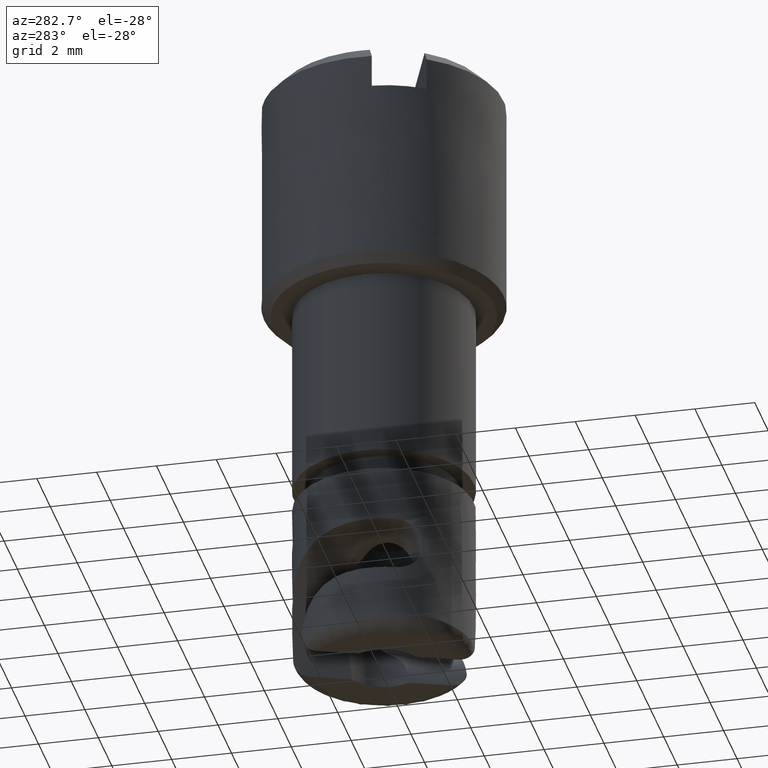
[diagram: clean part render]
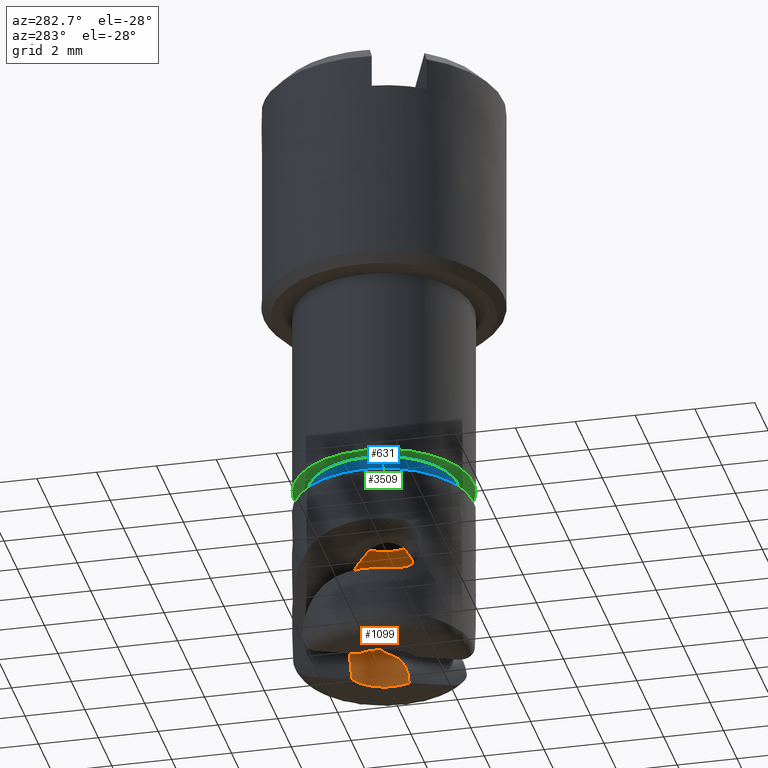
[diagram: same view with three faces highlighted in distinct colors, each labeled with its STEP entity id]
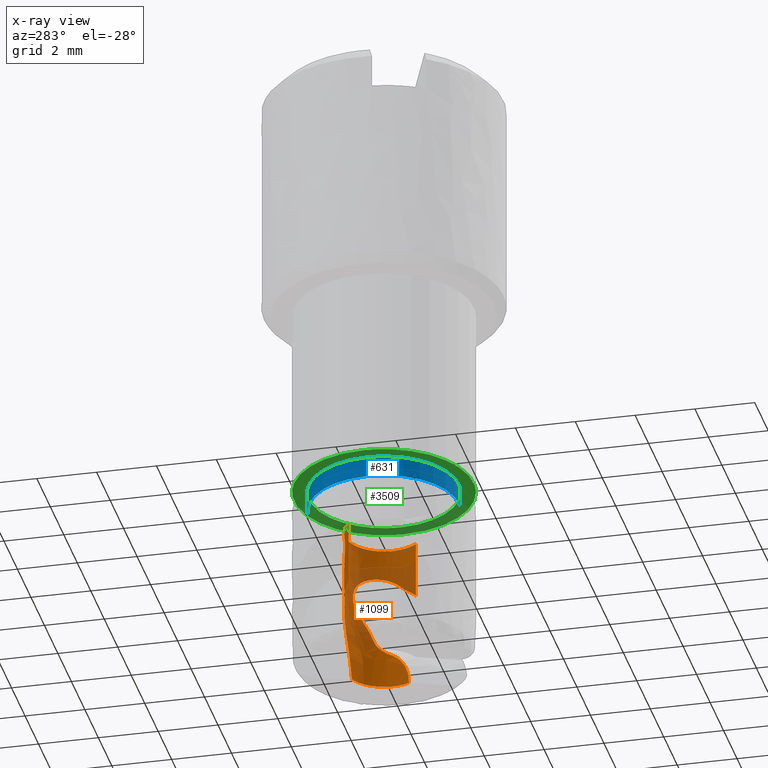
[diagram: x-ray of the same camera — body ghosted, the three highlighted faces saturated]
A machine part, auxiliary view with three faces highlighted in distinct colors.
The next image is the same camera in x-ray (body ghosted, the three faces saturated) — at least one of them is partly hidden behind the body in this view.
Their STEP definitions:

[orange] entity #1099 — the highlighted face is a freeform B-spline surface patch.
#654=CARTESIAN_POINT('',(0.992059936651638,-0.840183662686237,0.305371957803331));
#655=VERTEX_POINT('',#654);
#816=CARTESIAN_POINT('',(-0.830183882252613,1.000432129150354,0.106205310528743));
#817=VERTEX_POINT('',#816);
#831=CARTESIAN_POINT('',(-0.830165377469329,1.000412637890112,2.202430999999950));
#832=VERTEX_POINT('',#831);
#833=CARTESIAN_POINT('',(-0.830165377469329,1.000412637890112,2.202430999999950));
#834=CARTESIAN_POINT('',(-0.830183882252613,1.000432129150354,0.106205310528743));
#835=QUASI_UNIFORM_CURVE('',1,(#833,#834),.UNSPECIFIED.,.F.,.U.);
#836=EDGE_CURVE('',#832,#817,#835,.T.);
#853=CARTESIAN_POINT('',(0.992033084719822,-0.840160912457414,2.202430999999950));
#854=VERTEX_POINT('',#853);
#870=CARTESIAN_POINT('',(0.992033084719822,-0.840160912457414,2.202430999999950));
#871=CARTESIAN_POINT('',(0.992059936651638,-0.840183662686237,0.305371957803331));
#872=QUASI_UNIFORM_CURVE('',1,(#870,#871),.UNSPECIFIED.,.F.,.U.);
#873=EDGE_CURVE('',#854,#655,#872,.T.);
#878=CARTESIAN_POINT('',(-0.830166128990080,1.000412014260937,2.327430999999952));
#879=CARTESIAN_POINT('',(0.170245885270857,1.830578143251016,2.327430999999953));
#880=CARTESIAN_POINT('',(1.000412014260937,0.830166128990080,2.327430999999952));
#881=CARTESIAN_POINT('',(1.696365407653475,-0.008509543025783,2.327430999999952));
#882=CARTESIAN_POINT('',(0.992033088515303,-0.840160907975841,2.327430999999953));
#883=CARTESIAN_POINT('',(-0.830166128990080,1.000412014260937,-2.925694000000107));
#884=CARTESIAN_POINT('',(0.170245885270857,1.830578143251016,-2.925694000000106));
#885=CARTESIAN_POINT('',(1.000412014260937,0.830166128990080,-2.925694000000107));
#886=CARTESIAN_POINT('',(1.696365407653475,-0.008509543025783,-2.925694000000106));
#887=CARTESIAN_POINT('',(0.992033088515303,-0.840160907975841,-2.925694000000107));
#895=(BOUNDED_SURFACE()B_SPLINE_SURFACE(2,1,((#878,#883),(#879,#884),(#880,#885),(#881,#886),(#882,#887)),.UNSPECIFIED.,.F.,.F.,.U.)B_SPLINE_SURFACE_WITH_KNOTS((3,2,3),(2,2),(0.0,1.570796326794897,2.953097094374405),(0.0,5.253125000000060),.UNSPECIFIED.)GEOMETRIC_REPRESENTATION_ITEM()RATIONAL_B_SPLINE_SURFACE(((1.0,1.0),(0.707106781186548,0.707106781186548),(1.0,1.0),(0.742253967444162,0.742253967444162),(0.938140952186599,0.938140952186599)))REPRESENTATION_ITEM('')SURFACE());
#896=CARTESIAN_POINT('',(1.267981552969582,-0.286745150488802,0.814223894871400));
#897=VERTEX_POINT('',#896);
#898=CARTESIAN_POINT('',(1.267981552969582,-0.286745150488802,0.814223894871400));
#899=CARTESIAN_POINT('',(1.242458048175462,-0.399538135700737,0.693559284856744));
#900=CARTESIAN_POINT('',(1.195459358768081,-0.527742284655293,0.595723389486712));
#901=CARTESIAN_POINT('',(1.129675043280713,-0.643256137462037,0.494416741189799));
#902=CARTESIAN_POINT('',(1.088930045569304,-0.714802244362711,0.431670186446048));
#903=CARTESIAN_POINT('',(1.042823588157420,-0.780294756955971,0.369739831360171));
#904=CARTESIAN_POINT('',(0.992059936651638,-0.840183662686237,0.305371957803331));
#905=B_SPLINE_CURVE_WITH_KNOTS('',3,(#898,#899,#900,#901,#902,#903,#904),.UNSPECIFIED.,.F.,.U.,(4,3,4),(0.0,0.501407822592289,0.811966052660496),.UNSPECIFIED.);
#906=EDGE_CURVE('',#897,#655,#905,.T.);
#907=ORIENTED_EDGE('',*,*,#906,.T.);
#908=ORIENTED_EDGE('',*,*,#873,.F.);
#909=CARTESIAN_POINT('',(1.300000000000000,0.0,2.202430999999950));
#910=VERTEX_POINT('',#909);
#911=CARTESIAN_POINT('',(1.300000000000000,0.0,2.202430999999950));
#912=CARTESIAN_POINT('',(1.300000000000000,-0.476524183315981,2.202430999999950));
#913=CARTESIAN_POINT('',(0.992033084719822,-0.840160912457414,2.202430999999950));
#921=(BOUNDED_CURVE()B_SPLINE_CURVE(2,(#911,#912,#913),.UNSPECIFIED.,.F.,.U.)B_SPLINE_CURVE_WITH_KNOTS((3,3),(0.0,0.112514143353602),.UNSPECIFIED.)CURVE()GEOMETRIC_REPRESENTATION_ITEM()RATIONAL_B_SPLINE_CURVE((1.0,0.868181481564501,0.855014544568291))REPRESENTATION_ITEM(''));
#922=EDGE_CURVE('',#910,#854,#921,.T.);
#923=ORIENTED_EDGE('',*,*,#922,.F.);
#924=CARTESIAN_POINT('',(-0.830165377469329,1.000412637890112,2.202430999999950));
#925=CARTESIAN_POINT('',(-0.469139189808181,1.300000000000000,2.202430999999950));
#926=CARTESIAN_POINT('',(0.0,1.300000000000000,2.202430999999950));
#927=CARTESIAN_POINT('',(1.300000000000000,1.300000000000000,2.202430999999950));
#928=CARTESIAN_POINT('',(1.300000000000000,0.0,2.202430999999950));
#936=(BOUNDED_CURVE()B_SPLINE_CURVE(2,(#924,#925,#926,#927,#928),.UNSPECIFIED.,.F.,.U.)B_SPLINE_CURVE_WITH_KNOTS((3,2,3),(0.639002805452656,0.750000000000000,1.0),.UNSPECIFIED.)CURVE()GEOMETRIC_REPRESENTATION_ITEM()RATIONAL_B_SPLINE_CURVE((0.855391153176900,0.869958697639062,1.0,0.707106781186548,1.0))REPRESENTATION_ITEM(''));
#937=EDGE_CURVE('',#832,#910,#936,.T.);
#938=ORIENTED_EDGE('',*,*,#937,.F.);
#939=ORIENTED_EDGE('',*,*,#836,.T.);
#940=CARTESIAN_POINT('',(-0.315669029144085,1.261092012519004,-0.577124191345621));
#941=VERTEX_POINT('',#940);
#942=CARTESIAN_POINT('',(-0.830183882252613,1.000432129150354,0.106205310528743));
#943=CARTESIAN_POINT('',(-0.756203223690623,1.061951124743228,0.016047839966417));
#944=CARTESIAN_POINT('',(-0.680175669899532,1.111270845105723,-0.077251847579336));
#945=CARTESIAN_POINT('',(-0.602887179505190,1.151733011226475,-0.178495916042463));
#946=CARTESIAN_POINT('',(-0.505527965785301,1.202702627256242,-0.306031631245076));
#947=CARTESIAN_POINT('',(-0.410922166940145,1.237231396447765,-0.440378439387066));
#948=CARTESIAN_POINT('',(-0.315669029144085,1.261092012519004,-0.577124191345621));
#949=B_SPLINE_CURVE_WITH_KNOTS('',3,(#942,#943,#944,#945,#946,#947,#948),.UNSPECIFIED.,.F.,.U.,(4,3,4),(1.117882501788651,1.518819934646006,2.023875124813370),.UNSPECIFIED.);
#950=EDGE_CURVE('',#817,#941,#949,.T.);
#951=ORIENTED_EDGE('',*,*,#950,.T.);
#952=CARTESIAN_POINT('',(0.524884776048333,1.189325847643222,-2.797569000000101));
#953=VERTEX_POINT('',#952);
#954=CARTESIAN_POINT('',(0.524884776048333,1.189325847643222,-2.797569000000101));
#955=CARTESIAN_POINT('',(0.513501378320178,1.194349678731723,-2.595177445750701));
#956=CARTESIAN_POINT('',(0.483612286810659,1.207662406789893,-2.397420410578441));
#957=CARTESIAN_POINT('',(0.415453761642081,1.232063515050826,-2.106192571263025));
#958=CARTESIAN_POINT('',(0.388841069424074,1.240883205024357,-2.010015355992971));
#959=CARTESIAN_POINT('',(0.328400001446146,1.258229686834860,-1.819213860014564));
#960=CARTESIAN_POINT('',(0.294449174268730,1.266778124022167,-1.724292897529964));
#961=CARTESIAN_POINT('',(0.183361080404604,1.289219624853535,-1.443949718977521));
#962=CARTESIAN_POINT('',(0.097357545898325,1.299899495499361,-1.263318472646395));
#963=CARTESIAN_POINT('',(-0.046651673981358,1.300049198626901,-1.000219535935831));
#964=CARTESIAN_POINT('',(-0.097176868055440,1.297456330820344,-0.913839156970281));
#965=CARTESIAN_POINT('',(-0.176527775554203,1.288234067619545,-0.786129243060651));
#966=CARTESIAN_POINT('',(-0.203572676068269,1.284268744029102,-0.743869767498363));
#967=CARTESIAN_POINT('',(-0.258821812390182,1.274283842306236,-0.659955594439502));
#968=CARTESIAN_POINT('',(-0.287092267256933,1.268245177071436,-0.618209091274059));
#969=CARTESIAN_POINT('',(-0.315669029144085,1.261092012519004,-0.577124191345621));
#970=B_SPLINE_CURVE_WITH_KNOTS('',3,(#954,#955,#956,#957,#958,#959,#960,#961,#962,#963,#964,#965,#966,#967,#968,#969),.UNSPECIFIED.,.F.,.U.,(4,2,2,2,2,2,2,4),(0.0,0.250000000000000,0.375000000000000,0.500000000000000,0.750000000000000,0.875000000000000,0.937500000000000,1.0),.UNSPECIFIED.);
#971=EDGE_CURVE('',#953,#941,#970,.T.);
#972=ORIENTED_EDGE('',*,*,#971,.F.);
#973=CARTESIAN_POINT('',(1.166569293323064,-0.573686398551991,-2.797569000000105));
#974=VERTEX_POINT('',#973);
#975=CARTESIAN_POINT('',(0.524884776048333,1.189325847643222,-2.797569000000101));
#976=CARTESIAN_POINT('',(1.032012024761962,0.965515549652709,-2.797569000000056));
#977=CARTESIAN_POINT('',(1.221600287431846,0.444626514893604,-2.797569000000055));
#978=CARTESIAN_POINT('',(1.411188550101730,-0.076262519865501,-2.797569000000056));
#979=CARTESIAN_POINT('',(1.166569293323064,-0.573686398551991,-2.797569000000105));
#987=(BOUNDED_CURVE()B_SPLINE_CURVE(2,(#975,#976,#977,#978,#979),.UNSPECIFIED.,.F.,.U.)B_SPLINE_CURVE_WITH_KNOTS((3,2,3),(0.0,0.500000000000000,1.0),.UNSPECIFIED.)CURVE()GEOMETRIC_REPRESENTATION_ITEM()RATIONAL_B_SPLINE_CURVE((1.0,0.919867047249410,1.0,0.919867047249410,1.0))REPRESENTATION_ITEM(''));
#988=EDGE_CURVE('',#953,#974,#987,.T.);
#989=ORIENTED_EDGE('',*,*,#988,.T.);
#990=CARTESIAN_POINT('',(1.298886729969562,-0.053789057520828,-1.698732145808030));
#991=VERTEX_POINT('',#990);
#992=CARTESIAN_POINT('',(1.166569293323064,-0.573686398551991,-2.797569000000105));
#993=CARTESIAN_POINT('',(1.166586246119068,-0.573651925691377,-2.690508426754633));
#994=CARTESIAN_POINT('',(1.171530422576744,-0.563910149434326,-2.585218268938524));
#995=CARTESIAN_POINT('',(1.185257739952013,-0.534119496740494,-2.429957326315818));
#996=CARTESIAN_POINT('',(1.190878969644428,-0.521619376638671,-2.378654926557418));
#997=CARTESIAN_POINT('',(1.203899038039809,-0.490822371773242,-2.277028857565850));
#998=CARTESIAN_POINT('',(1.211220895153352,-0.472695848964718,-2.227343288693028));
#999=CARTESIAN_POINT('',(1.226722592166525,-0.430870171110515,-2.131223398165383));
#1000=CARTESIAN_POINT('',(1.234924222123611,-0.407130535805408,-2.084643727088571));
#1001=CARTESIAN_POINT('',(1.247278737623544,-0.366734273780648,-2.017162404149029));
#1002=CARTESIAN_POINT('',(1.251403890047793,-0.352468226229413,-1.995067782144407));
#1003=CARTESIAN_POINT('',(1.259536220514184,-0.322201886619089,-1.951720977372328));
#1004=CARTESIAN_POINT('',(1.263542809084022,-0.306189371249085,-1.930470327228643));
#1005=CARTESIAN_POINT('',(1.274966773865045,-0.256181910672035,-1.869056427467345));
#1006=CARTESIAN_POINT('',(1.281863550708472,-0.219993689030275,-1.830870473085989));
#1007=CARTESIAN_POINT('',(1.290130374849462,-0.161110093888636,-1.777891644194642));
#1008=CARTESIAN_POINT('',(1.292537635602005,-0.140713178267472,-1.760950589418627));
#1009=CARTESIAN_POINT('',(1.296453839230674,-0.098291305463926,-1.728563211819996));
#1010=CARTESIAN_POINT('',(1.297957947805046,-0.076217091845635,-1.713101199147402));
#1011=CARTESIAN_POINT('',(1.298886729969562,-0.053789057520828,-1.698732145808030));
#1012=B_SPLINE_CURVE_WITH_KNOTS('',3,(#992,#993,#994,#995,#996,#997,#998,#999,#1000,#1001,#1002,#1003,#1004,#1005,#1006,#1007,#1008,#1009,#1010,#1011),.UNSPECIFIED.,.F.,.U.,(4,2,2,2,2,2,2,2,2,4),(0.0,0.249999999999999,0.374999999999998,0.499999999999998,0.624999999999998,0.687499999999998,0.749999999999999,0.874999999999999,0.937500000000000,1.0),.UNSPECIFIED.);
#1013=EDGE_CURVE('',#974,#991,#1012,.T.);
#1014=ORIENTED_EDGE('',*,*,#1013,.T.);
#1015=CARTESIAN_POINT('',(1.150267881750536,0.605212050091006,-1.135988748234664));
#1016=VERTEX_POINT('',#1015);
#1017=CARTESIAN_POINT('',(1.298886729969562,-0.053789057520828,-1.698732145808030));
#1018=CARTESIAN_POINT('',(1.299391133997430,-0.036673193491515,-1.687965942542473));
#1019=CARTESIAN_POINT('',(1.300523092663065,0.001742048590832,-1.663802214973749));
#1020=CARTESIAN_POINT('',(1.298820750284425,0.067860818303552,-1.627224318711750));
#1021=CARTESIAN_POINT('',(1.291893647416055,0.155072655220883,-1.581848840413515));
#1022=CARTESIAN_POINT('',(1.277328874683084,0.247785226265527,-1.532853933763171));
#1023=CARTESIAN_POINT('',(1.251864647349998,0.355484218626142,-1.465959783373829));
#1024=CARTESIAN_POINT('',(1.218921652524635,0.456047434425333,-1.380472635655948));
#1025=CARTESIAN_POINT('',(1.179255098033803,0.548813692424471,-1.266533587676229));
#1026=CARTESIAN_POINT('',(1.159794524980144,0.586676740353966,-1.178892285389564));
#1027=CARTESIAN_POINT('',(1.150267881750536,0.605212050091006,-1.135988748234664));
#1028=B_SPLINE_CURVE_WITH_KNOTS('',3,(#1017,#1018,#1019,#1020,#1021,#1022,#1023,#1024,#1025,#1026,#1027),.UNSPECIFIED.,.F.,.U.,(4,1,1,1,1,1,1,1,4),(0.000009428579947,0.067065459123406,0.150511213974934,0.250431333877069,0.393798913799013,0.501143257374602,0.678460672825520,0.842595053812992,1.0),.UNSPECIFIED.);
#1029=EDGE_CURVE('',#991,#1016,#1028,.T.);
#1030=ORIENTED_EDGE('',*,*,#1029,.T.);
#1031=CARTESIAN_POINT('',(0.808502619372368,1.017999761526504,-0.337050086054862));
#1032=VERTEX_POINT('',#1031);
#1033=CARTESIAN_POINT('',(1.150267881750536,0.605212050091006,-1.135988748234664));
#1034=CARTESIAN_POINT('',(1.148246882508935,0.609059782895055,-1.125235745546956));
#1035=CARTESIAN_POINT('',(1.136988326047207,0.630239509899610,-1.067162032547977));
#1036=CARTESIAN_POINT('',(1.113354744735501,0.671996180363771,-0.963578389426813));
#1037=CARTESIAN_POINT('',(1.073481524343944,0.734377047451021,-0.828483572065989));
#1038=CARTESIAN_POINT('',(1.024463737760507,0.801799966811751,-0.698055098753347));
#1039=CARTESIAN_POINT('',(0.964798313374768,0.872825012931057,-0.572455500112978));
#1040=CARTESIAN_POINT('',(0.894290975425585,0.946134466956290,-0.451082135503957));
#1041=CARTESIAN_POINT('',(0.837261014668649,0.993908723483394,-0.375276471375358));
#1042=CARTESIAN_POINT('',(0.808502619372368,1.017999761526504,-0.337050086054862));
#1043=B_SPLINE_CURVE_WITH_KNOTS('',3,(#1033,#1034,#1035,#1036,#1037,#1038,#1039,#1040,#1041,#1042),.UNSPECIFIED.,.F.,.U.,(4,1,1,1,1,1,1,4),(0.308492148633503,0.333272015208666,0.442732364467968,0.552202127649953,0.662179635778658,0.773156210506138,0.885609892025437,1.0),.UNSPECIFIED.);
#1044=EDGE_CURVE('',#1016,#1032,#1043,.T.);
#1045=ORIENTED_EDGE('',*,*,#1044,.T.);
#1046=CARTESIAN_POINT('',(1.267981552969582,-0.286745150488802,0.814223894871400));
#1047=CARTESIAN_POINT('',(1.272702631313155,-0.265868632653173,0.836755813195189));
#1048=CARTESIAN_POINT('',(1.277144263868824,-0.243797567772530,0.858567942179973));
#1049=CARTESIAN_POINT('',(1.285006822054450,-0.198222582110016,0.899923240224333));
#1050=CARTESIAN_POINT('',(1.288451685034327,-0.174628603166760,0.919572741450651));
#1051=CARTESIAN_POINT('',(1.296964665485696,-0.101460491466649,0.975530543598650));
#1052=CARTESIAN_POINT('',(1.300236064672528,-0.049518176058674,1.008902279555322));
#1053=CARTESIAN_POINT('',(1.299737595839504,0.061221365524024,1.067163994873311));
#1054=CARTESIAN_POINT('',(1.295964849286559,0.118155017910672,1.091062930171868));
#1055=CARTESIAN_POINT('',(1.279920509780376,0.235136104176600,1.128026798899906));
#1056=CARTESIAN_POINT('',(1.267381765861502,0.295819949661348,1.141031253959143));
#1057=CARTESIAN_POINT('',(1.233879110524031,0.413894097165309,1.153926173282347));
#1058=CARTESIAN_POINT('',(1.212843656257831,0.472113877279429,1.154135636268043));
#1059=CARTESIAN_POINT('',(1.162139227086492,0.585929743665136,1.141507396857131));
#1060=CARTESIAN_POINT('',(1.133484754387729,0.639319669028433,1.128954333295532));
#1061=CARTESIAN_POINT('',(1.086294927124030,0.714732581609099,1.101470871798392));
#1062=CARTESIAN_POINT('',(1.069760790863993,0.739215877282708,1.090779512316484));
#1063=CARTESIAN_POINT('',(1.035999064918078,0.785833443158071,1.066905531935827));
#1064=CARTESIAN_POINT('',(1.001532057672595,0.830175534031534,1.040563649636823));
#1065=CARTESIAN_POINT('',(0.965973956787800,0.870393063348540,1.009521785721070));
#1066=CARTESIAN_POINT('',(0.930031578272264,0.908697437728276,0.976152473089078));
#1067=CARTESIAN_POINT('',(0.911817345147762,0.926932292408505,0.958243241441472));
#1068=CARTESIAN_POINT('',(0.857823492943638,0.978057379422071,0.901967705004206));
#1069=CARTESIAN_POINT('',(0.822376459504490,1.007736423342441,0.860848000898512));
#1070=CARTESIAN_POINT('',(0.771272401964133,1.046708085852027,0.793474228997409));
#1071=CARTESIAN_POINT('',(0.754509464886332,1.058818131007412,0.769936066044642));
#1072=CARTESIAN_POINT('',(0.722407619360067,1.080975299737976,0.721400516552642));
#1073=CARTESIAN_POINT('',(0.707093599589109,1.091013005015384,0.696459655556730));
#1074=CARTESIAN_POINT('',(0.663806499996286,1.118268247484925,0.619479898516095));
#1075=CARTESIAN_POINT('',(0.638422307794505,1.132668906777732,0.565328468423903));
#1076=CARTESIAN_POINT('',(0.608279127819991,1.148967787418878,0.478627468162227));
#1077=CARTESIAN_POINT('',(0.599549329237083,1.153516507595076,0.448620438052028));
#1078=CARTESIAN_POINT('',(0.585791919876080,1.160563465774653,0.388265622545220));
#1079=CARTESIAN_POINT('',(0.580690576565096,1.163104029505092,0.357755927148219));
#1080=CARTESIAN_POINT('',(0.574348186047985,1.166248982998861,0.296029571775242));
#1081=CARTESIAN_POINT('',(0.573122366491044,1.166846856808923,0.264537337046445));
#1082=CARTESIAN_POINT('',(0.574761408002081,1.166040375839800,0.202239310402942));
#1083=CARTESIAN_POINT('',(0.580398173219804,1.163275887273745,0.140814308356327));
#1084=CARTESIAN_POINT('',(0.593336823976033,1.156734815955832,0.081001903883415));
#1085=CARTESIAN_POINT('',(0.609589300145568,1.148252980086868,0.021941745146261));
#1086=CARTESIAN_POINT('',(0.619450266551252,1.142997206013313,-0.007386466475996));
#1087=CARTESIAN_POINT('',(0.652763787881066,1.124519639654992,-0.092468497339985));
#1088=CARTESIAN_POINT('',(0.679882517663127,1.108636585228647,-0.145704252693120));
#1089=CARTESIAN_POINT('',(0.725446301050510,1.078914497666510,-0.221387186295389));
#1090=CARTESIAN_POINT('',(0.741486006601261,1.067992451746432,-0.245924794575593));
#1091=CARTESIAN_POINT('',(0.774362985064854,1.044399991542651,-0.292878189483836));
#1092=CARTESIAN_POINT('',(0.791265633017128,1.031689498148968,-0.315407261863964));
#1093=CARTESIAN_POINT('',(0.808502619372368,1.017999761526504,-0.337050086054862));
#1094=B_SPLINE_CURVE_WITH_KNOTS('',3,(#1046,#1047,#1048,#1049,#1050,#1051,#1052,#1053,#1054,#1055,#1056,#1057,#1058,#1059,#1060,#1061,#1062,#1063,#1064,#1065,#1066,#1067,#1068,#1069,#1070,#1071,#1072,#1073,#1074,#1075,#1076,#1077,#1078,#1079,#1080,#1081,#1082,#1083,#1084,#1085,#1086,#1087,#1088,#1089,#1090,#1091,#1092,#1093),.UNSPECIFIED.,.F.,.U.,(4,2,2,2,2,2,2,2,2,1,2,2,2,2,2,2,2,2,2,1,2,2,2,2,4),(0.0,0.031250000000000,0.062500000000000,0.125000000000000,0.187500000000000,0.250000000000000,0.312499999999999,0.374999999999999,0.406249999999999,0.437499999999999,0.468749999999999,0.499999999999999,0.562499999999999,0.593749999999999,0.625000000000000,0.687500000000000,0.718750000000000,0.750000000000000,0.781250000000000,0.812500000000000,0.843750000000000,0.875000000000000,0.937500000000000,0.968750000000000,1.0),.UNSPECIFIED.);
#1095=EDGE_CURVE('',#897,#1032,#1094,.T.);
#1096=ORIENTED_EDGE('',*,*,#1095,.F.);
#1097=EDGE_LOOP('',(#907,#908,#923,#938,#939,#951,#972,#989,#1014,#1030,#1045,#1096));
#1098=FACE_OUTER_BOUND('',#1097,.T.);
#1099=ADVANCED_FACE('',(#1098),#895,.F.);

[blue] entity #631 — the highlighted face is a freeform B-spline surface patch.
#468=CARTESIAN_POINT('',(-0.295086058792339,2.482527787945666,3.702431000000000));
#469=VERTEX_POINT('',#468);
#487=CARTESIAN_POINT('',(0.152620020915439,-2.495341084747592,3.702431000000040));
#488=VERTEX_POINT('',#487);
#502=CARTESIAN_POINT('',(0.152620039888751,-2.495341083587158,3.002433999999895));
#503=VERTEX_POINT('',#502);
#504=CARTESIAN_POINT('',(0.152620020915439,-2.495341084747592,3.702431000000040));
#505=CARTESIAN_POINT('',(0.152620039888751,-2.495341083587158,3.002433999999895));
#506=QUASI_UNIFORM_CURVE('',1,(#504,#505),.UNSPECIFIED.,.F.,.U.);
#507=EDGE_CURVE('',#488,#503,#506,.T.);
#524=CARTESIAN_POINT('',(-0.295086058792339,2.482527787945666,3.002433999999895));
#525=VERTEX_POINT('',#524);
#541=CARTESIAN_POINT('',(-0.295086058792339,2.482527787945666,3.702431000000000));
#542=CARTESIAN_POINT('',(-0.295086058792339,2.482527787945666,3.002433999999895));
#543=QUASI_UNIFORM_CURVE('',1,(#541,#542),.UNSPECIFIED.,.F.,.U.);
#544=EDGE_CURVE('',#469,#525,#543,.T.);
#549=CARTESIAN_POINT('',(0.152621593031301,-2.495340988593861,3.719930925000003));
#550=CARTESIAN_POINT('',(-2.342719395562560,-2.647962581625161,3.719930925000004));
#551=CARTESIAN_POINT('',(-2.495340988593861,-0.152621593031301,3.719930925000003));
#552=CARTESIAN_POINT('',(-2.639469714976105,2.203862253272717,3.719930925000003));
#553=CARTESIAN_POINT('',(-0.295086058778835,2.482527787947271,3.719930925000004));
#554=CARTESIAN_POINT('',(0.152621593031301,-2.495340988593861,2.984496576874892));
#555=CARTESIAN_POINT('',(-2.342719395562560,-2.647962581625161,2.984496576874893));
#556=CARTESIAN_POINT('',(-2.495340988593861,-0.152621593031301,2.984496576874892));
#557=CARTESIAN_POINT('',(-2.639469714976105,2.203862253272717,2.984496576874891));
#558=CARTESIAN_POINT('',(-0.295086058778835,2.482527787947271,2.984496576874892));
#566=(BOUNDED_SURFACE()B_SPLINE_SURFACE(2,1,((#549,#554),(#550,#555),(#551,#556),(#552,#557),(#553,#558)),.UNSPECIFIED.,.F.,.F.,.U.)B_SPLINE_SURFACE_WITH_KNOTS((3,2,3),(2,2),(0.0,4.142142251147949,8.118598812249982),(0.0,1.0),.UNSPECIFIED.)GEOMETRIC_REPRESENTATION_ITEM()RATIONAL_B_SPLINE_SURFACE(((1.0,1.0),(0.707106781186548,0.707106781186548),(1.0,1.0),(0.718822509939086,0.718822509939086),(0.977505800795127,0.977505800795127)))REPRESENTATION_ITEM('')SURFACE());
#567=CARTESIAN_POINT('',(-2.500004000000000,0.0,3.702431000000000));
#568=VERTEX_POINT('',#567);
#569=CARTESIAN_POINT('',(-2.500004000000000,0.0,3.702431000000000));
#570=CARTESIAN_POINT('',(-2.500004000000000,2.220439867552196,3.702431000000000));
#571=CARTESIAN_POINT('',(-0.295086058792339,2.482527787945667,3.702431000000000));
#579=(BOUNDED_CURVE()B_SPLINE_CURVE(2,(#569,#570,#571),.UNSPECIFIED.,.F.,.U.)B_SPLINE_CURVE_WITH_KNOTS((3,3),(0.0,0.229562473513806),.UNSPECIFIED.)CURVE()GEOMETRIC_REPRESENTATION_ITEM()RATIONAL_B_SPLINE_CURVE((1.0,0.731050832855054,0.956026754184282))REPRESENTATION_ITEM(''));
#580=EDGE_CURVE('',#568,#469,#579,.T.);
#581=ORIENTED_EDGE('',*,*,#580,.T.);
#582=ORIENTED_EDGE('',*,*,#544,.T.);
#583=CARTESIAN_POINT('',(-2.500004000000000,0.0,3.002433999999895));
#584=VERTEX_POINT('',#583);
#585=CARTESIAN_POINT('',(-2.500004000000000,0.0,3.002433999999895));
#586=CARTESIAN_POINT('',(-2.500004000000000,2.220439867552196,3.002433999999896));
#587=CARTESIAN_POINT('',(-0.295086058792339,2.482527787945667,3.002433999999895));
#595=(BOUNDED_CURVE()B_SPLINE_CURVE(2,(#585,#586,#587),.UNSPECIFIED.,.F.,.U.)B_SPLINE_CURVE_WITH_KNOTS((3,3),(0.0,0.229562473513806),.UNSPECIFIED.)CURVE()GEOMETRIC_REPRESENTATION_ITEM()RATIONAL_B_SPLINE_CURVE((1.0,0.731050832855054,0.956026754184282))REPRESENTATION_ITEM(''));
#596=EDGE_CURVE('',#584,#525,#595,.T.);
#597=ORIENTED_EDGE('',*,*,#596,.F.);
#598=CARTESIAN_POINT('',(0.152620039888751,-2.495341083587158,3.002433999999896));
#599=CARTESIAN_POINT('',(0.076381251708858,-2.500004000000000,3.002433999999896));
#600=CARTESIAN_POINT('',(0.0,-2.500004000000000,3.002433999999895));
#601=CARTESIAN_POINT('',(-2.500003999999999,-2.500003999999999,3.002433999999894));
#602=CARTESIAN_POINT('',(-2.500004000000000,0.0,3.002433999999895));
#610=(BOUNDED_CURVE()B_SPLINE_CURVE(2,(#598,#599,#600,#601,#602),.UNSPECIFIED.,.F.,.U.)B_SPLINE_CURVE_WITH_KNOTS((3,2,3),(0.739333069638025,0.750000000000000,1.0),.UNSPECIFIED.)CURVE()GEOMETRIC_REPRESENTATION_ITEM()RATIONAL_B_SPLINE_CURVE((0.976072271843503,0.987502913725689,1.0,0.707106781186547,1.0))REPRESENTATION_ITEM(''));
#611=EDGE_CURVE('',#503,#584,#610,.T.);
#612=ORIENTED_EDGE('',*,*,#611,.F.);
#613=ORIENTED_EDGE('',*,*,#507,.F.);
#614=CARTESIAN_POINT('',(0.152620020915439,-2.495341084747592,3.702431000000040));
#615=CARTESIAN_POINT('',(0.076381242195603,-2.500004000000000,3.702430999999999));
#616=CARTESIAN_POINT('',(0.0,-2.500004000000000,3.702431000000000));
#617=CARTESIAN_POINT('',(-2.500003999999999,-2.500003999999999,3.702431000000000));
#618=CARTESIAN_POINT('',(-2.500004000000000,0.0,3.702431000000000));
#626=(BOUNDED_CURVE()B_SPLINE_CURVE(2,(#614,#615,#616,#617,#618),.UNSPECIFIED.,.F.,.U.)B_SPLINE_CURVE_WITH_KNOTS((3,2,3),(0.739333070949984,0.750000000000000,1.0),.UNSPECIFIED.)CURVE()GEOMETRIC_REPRESENTATION_ITEM()RATIONAL_B_SPLINE_CURVE((0.976072274655283,0.987502915262744,1.0,0.707106781186547,1.0))REPRESENTATION_ITEM(''));
#627=EDGE_CURVE('',#488,#568,#626,.T.);
#628=ORIENTED_EDGE('',*,*,#627,.T.);
#629=EDGE_LOOP('',(#581,#582,#597,#612,#613,#628));
#630=FACE_OUTER_BOUND('',#629,.T.);
#631=ADVANCED_FACE('',(#630),#566,.T.);

[green] entity #3509 — the highlighted face is a freeform B-spline surface patch.
#316=CARTESIAN_POINT('',(0.183145862814251,-2.994408387803845,3.702431000000000));
#317=VERTEX_POINT('',#316);
#323=CARTESIAN_POINT('',(3.000004000000000,0.0,3.702431000000000));
#324=VERTEX_POINT('',#323);
#325=CARTESIAN_POINT('',(3.000004000000000,0.0,3.702431000000000));
#326=CARTESIAN_POINT('',(3.000004000000000,-2.822121963512044,3.702431000000000));
#327=CARTESIAN_POINT('',(0.183145862814251,-2.994408387803845,3.702430999999999));
#335=(BOUNDED_CURVE()B_SPLINE_CURVE(2,(#325,#326,#327),.UNSPECIFIED.,.F.,.U.)B_SPLINE_CURVE_WITH_KNOTS((3,3),(0.500000000000000,0.739332962240180),.UNSPECIFIED.)CURVE()GEOMETRIC_REPRESENTATION_ITEM()RATIONAL_B_SPLINE_CURVE((1.0,0.719603993285261,0.976072041669368))REPRESENTATION_ITEM(''));
#336=EDGE_CURVE('',#324,#317,#335,.T.);
#338=CARTESIAN_POINT('',(-0.354103176119966,2.979032551127589,3.702431000000000));
#339=VERTEX_POINT('',#338);
#340=CARTESIAN_POINT('',(-0.354103176119966,2.979032551127589,3.702431000000000));
#341=CARTESIAN_POINT('',(-0.177672595865096,3.000004000000000,3.702431000000000));
#342=CARTESIAN_POINT('',(0.0,3.000004000000000,3.702431000000000));
#343=CARTESIAN_POINT('',(3.000004000000001,3.000004000000001,3.702430999999999));
#344=CARTESIAN_POINT('',(3.000004000000000,0.0,3.702431000000000));
#352=(BOUNDED_CURVE()B_SPLINE_CURVE(2,(#340,#341,#342,#343,#344),.UNSPECIFIED.,.F.,.U.)B_SPLINE_CURVE_WITH_KNOTS((3,2,3),(0.229562473514197,0.250000000000000,0.500000000000000),.UNSPECIFIED.)CURVE()GEOMETRIC_REPRESENTATION_ITEM()RATIONAL_B_SPLINE_CURVE((0.956026754185050,0.976055948331952,1.0,0.707106781186548,1.0))REPRESENTATION_ITEM(''));
#353=EDGE_CURVE('',#339,#324,#352,.T.);
#397=CARTESIAN_POINT('',(-3.000004000000000,0.0,3.702431000000000));
#398=VERTEX_POINT('',#397);
#399=CARTESIAN_POINT('',(-3.000004000000000,0.0,3.702431000000000));
#400=CARTESIAN_POINT('',(-3.000004000000001,2.664527130529233,3.702430999999999));
#401=CARTESIAN_POINT('',(-0.354103176119966,2.979032551127590,3.702431000000000));
#409=(BOUNDED_CURVE()B_SPLINE_CURVE(2,(#399,#400,#401),.UNSPECIFIED.,.F.,.U.)B_SPLINE_CURVE_WITH_KNOTS((3,3),(0.0,0.229562473514197),.UNSPECIFIED.)CURVE()GEOMETRIC_REPRESENTATION_ITEM()RATIONAL_B_SPLINE_CURVE((1.0,0.731050832854595,0.956026754185050))REPRESENTATION_ITEM(''));
#410=EDGE_CURVE('',#398,#339,#409,.T.);
#412=CARTESIAN_POINT('',(0.183145862814251,-2.994408387803845,3.702431000000000));
#413=CARTESIAN_POINT('',(0.091658412122386,-3.000004000000000,3.702431000000000));
#414=CARTESIAN_POINT('',(0.0,-3.000004000000000,3.702431000000000));
#415=CARTESIAN_POINT('',(-3.000004000000001,-3.000004000000001,3.702430999999999));
#416=CARTESIAN_POINT('',(-3.000004000000000,0.0,3.702431000000000));
#424=(BOUNDED_CURVE()B_SPLINE_CURVE(2,(#412,#413,#414,#415,#416),.UNSPECIFIED.,.F.,.U.)B_SPLINE_CURVE_WITH_KNOTS((3,2,3),(0.739332962240179,0.750000000000000,1.0),.UNSPECIFIED.)CURVE()GEOMETRIC_REPRESENTATION_ITEM()RATIONAL_B_SPLINE_CURVE((0.976072041669368,0.987502787901286,1.0,0.707106781186548,1.0))REPRESENTATION_ITEM(''));
#425=EDGE_CURVE('',#317,#398,#424,.T.);
#468=CARTESIAN_POINT('',(-0.295086058792339,2.482527787945666,3.702431000000000));
#469=VERTEX_POINT('',#468);
#470=CARTESIAN_POINT('',(2.500004000000000,0.0,3.702431000000000));
#471=VERTEX_POINT('',#470);
#472=CARTESIAN_POINT('',(-0.295086058792339,2.482527787945667,3.702431000000000));
#473=CARTESIAN_POINT('',(-0.148060536039901,2.500004000000000,3.702431000000000));
#474=CARTESIAN_POINT('',(0.0,2.500004000000000,3.702431000000000));
#475=CARTESIAN_POINT('',(2.500003999999999,2.500003999999999,3.702431000000000));
#476=CARTESIAN_POINT('',(2.500004000000000,0.0,3.702431000000000));
#484=(BOUNDED_CURVE()B_SPLINE_CURVE(2,(#472,#473,#474,#475,#476),.UNSPECIFIED.,.F.,.U.)B_SPLINE_CURVE_WITH_KNOTS((3,2,3),(0.229562473513806,0.250000000000000,0.500000000000000),.UNSPECIFIED.)CURVE()GEOMETRIC_REPRESENTATION_ITEM()RATIONAL_B_SPLINE_CURVE((0.956026754184282,0.976055948331493,1.0,0.707106781186547,1.0))REPRESENTATION_ITEM(''));
#485=EDGE_CURVE('',#469,#471,#484,.T.);
#487=CARTESIAN_POINT('',(0.152620020915439,-2.495341084747592,3.702431000000040));
#488=VERTEX_POINT('',#487);
#489=CARTESIAN_POINT('',(2.500004000000000,0.0,3.702431000000000));
#490=CARTESIAN_POINT('',(2.500004000000000,-2.351770414520179,3.702430999999999));
#491=CARTESIAN_POINT('',(0.152620020915439,-2.495341084747592,3.702431000000040));
#499=(BOUNDED_CURVE()B_SPLINE_CURVE(2,(#489,#490,#491),.UNSPECIFIED.,.F.,.U.)B_SPLINE_CURVE_WITH_KNOTS((3,3),(0.500000000000000,0.739333070949984),.UNSPECIFIED.)CURVE()GEOMETRIC_REPRESENTATION_ITEM()RATIONAL_B_SPLINE_CURVE((1.0,0.719603865923803,0.976072274655283))REPRESENTATION_ITEM(''));
#500=EDGE_CURVE('',#471,#488,#499,.T.);
#567=CARTESIAN_POINT('',(-2.500004000000000,0.0,3.702431000000000));
#568=VERTEX_POINT('',#567);
#569=CARTESIAN_POINT('',(-2.500004000000000,0.0,3.702431000000000));
#570=CARTESIAN_POINT('',(-2.500004000000000,2.220439867552196,3.702431000000000));
#571=CARTESIAN_POINT('',(-0.295086058792339,2.482527787945667,3.702431000000000));
#579=(BOUNDED_CURVE()B_SPLINE_CURVE(2,(#569,#570,#571),.UNSPECIFIED.,.F.,.U.)B_SPLINE_CURVE_WITH_KNOTS((3,3),(0.0,0.229562473513806),.UNSPECIFIED.)CURVE()GEOMETRIC_REPRESENTATION_ITEM()RATIONAL_B_SPLINE_CURVE((1.0,0.731050832855054,0.956026754184282))REPRESENTATION_ITEM(''));
#580=EDGE_CURVE('',#568,#469,#579,.T.);
#614=CARTESIAN_POINT('',(0.152620020915439,-2.495341084747592,3.702431000000040));
#615=CARTESIAN_POINT('',(0.076381242195603,-2.500004000000000,3.702430999999999));
#616=CARTESIAN_POINT('',(0.0,-2.500004000000000,3.702431000000000));
#617=CARTESIAN_POINT('',(-2.500003999999999,-2.500003999999999,3.702431000000000));
#618=CARTESIAN_POINT('',(-2.500004000000000,0.0,3.702431000000000));
#626=(BOUNDED_CURVE()B_SPLINE_CURVE(2,(#614,#615,#616,#617,#618),.UNSPECIFIED.,.F.,.U.)B_SPLINE_CURVE_WITH_KNOTS((3,2,3),(0.739333070949984,0.750000000000000,1.0),.UNSPECIFIED.)CURVE()GEOMETRIC_REPRESENTATION_ITEM()RATIONAL_B_SPLINE_CURVE((0.976072274655283,0.987502915262744,1.0,0.707106781186547,1.0))REPRESENTATION_ITEM(''));
#627=EDGE_CURVE('',#488,#568,#626,.T.);
#3492=CARTESIAN_POINT('',(3.299704444294602,-3.299631426863778,3.702431000000000));
#3493=CARTESIAN_POINT('',(-3.299704551583107,-3.299631426863778,3.702431000000000));
#3494=CARTESIAN_POINT('',(3.299704444294602,3.299649826842154,3.702431000000000));
#3495=CARTESIAN_POINT('',(-3.299704551583107,3.299649826842154,3.702431000000000));
#3496=B_SPLINE_SURFACE_WITH_KNOTS('',1,1,((#3492,#3494),(#3493,#3495)),.UNSPECIFIED.,.F.,.F.,.U.,(2,2),(2,2),(0.0,6.599408995877709),(0.0,6.599281253705932),.UNSPECIFIED.);
#3497=ORIENTED_EDGE('',*,*,#410,.T.);
#3498=ORIENTED_EDGE('',*,*,#353,.T.);
#3499=ORIENTED_EDGE('',*,*,#336,.T.);
#3500=ORIENTED_EDGE('',*,*,#425,.T.);
#3501=EDGE_LOOP('',(#3497,#3498,#3499,#3500));
#3502=FACE_OUTER_BOUND('',#3501,.T.);
#3503=ORIENTED_EDGE('',*,*,#500,.F.);
#3504=ORIENTED_EDGE('',*,*,#485,.F.);
#3505=ORIENTED_EDGE('',*,*,#580,.F.);
#3506=ORIENTED_EDGE('',*,*,#627,.F.);
#3507=EDGE_LOOP('',(#3503,#3504,#3505,#3506));
#3508=FACE_BOUND('',#3507,.T.);
#3509=ADVANCED_FACE('',(#3502,#3508),#3496,.T.);